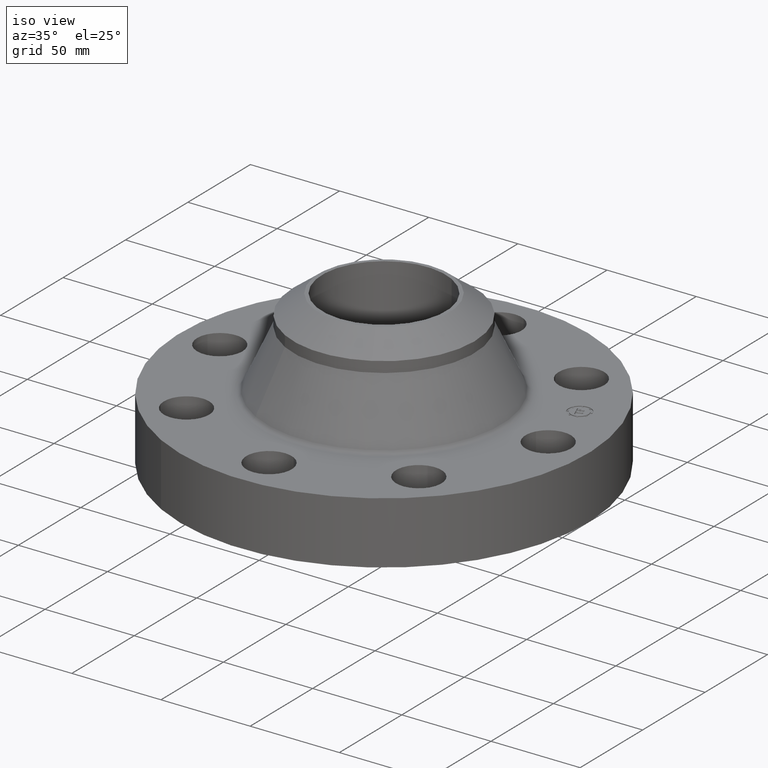
[diagram: clean part render]
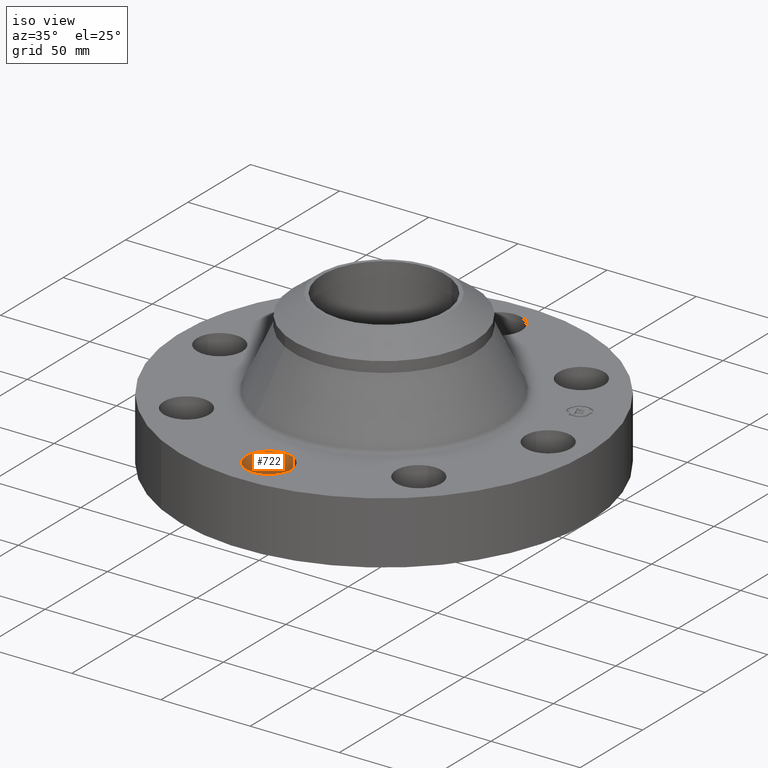
[diagram: same view with one face highlighted and labeled with its STEP entity id]
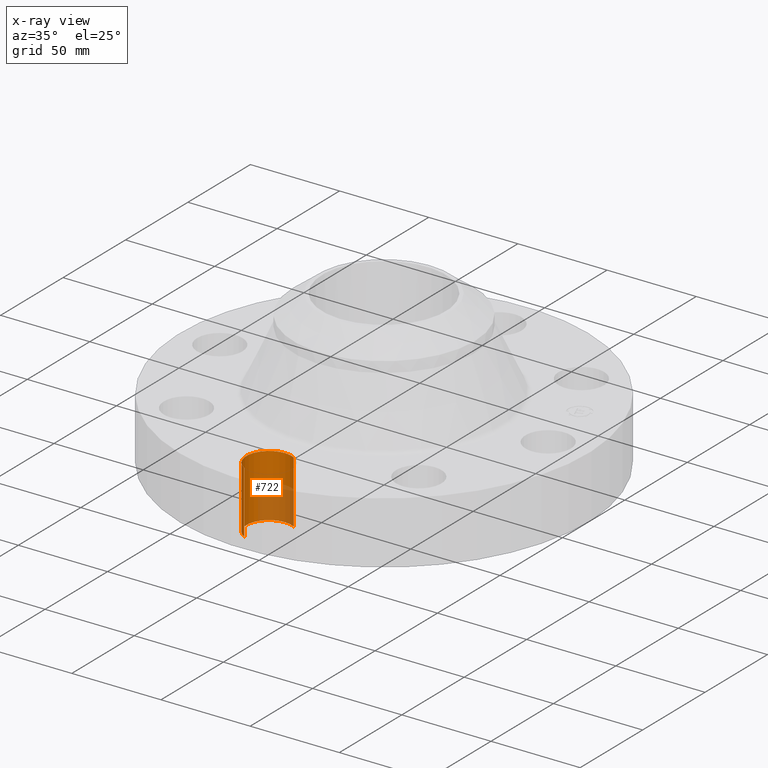
[diagram: x-ray of the same camera — body ghosted, the highlighted face saturated]
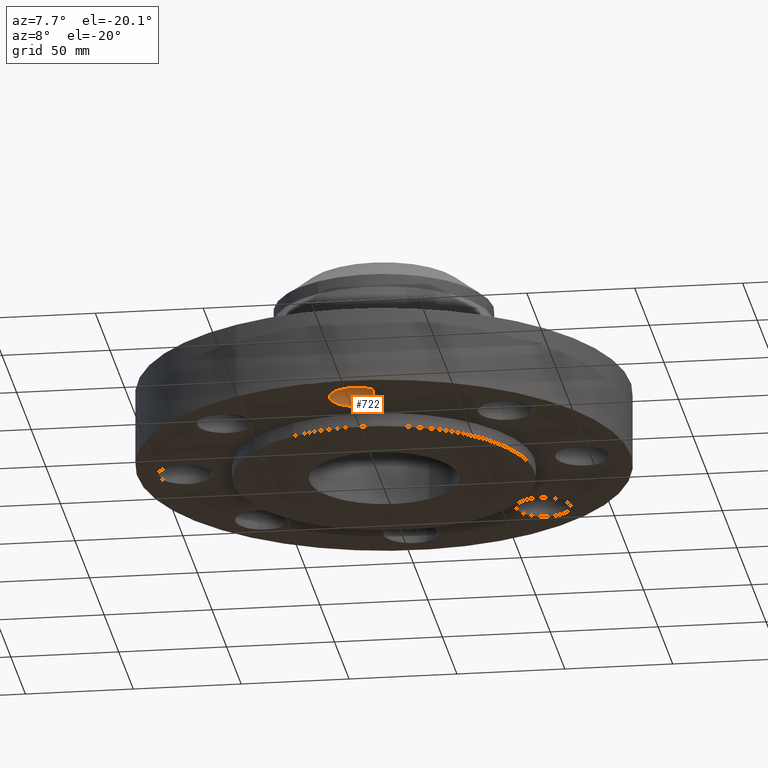
[diagram: same view with one face highlighted and labeled with its STEP entity id]
A machine part, iso view. The second image highlights one B-rep face of the part: STEP entity #722.
The next image is the same camera in x-ray: the body ghosted, the highlighted face saturated — about 36% of this face is hidden behind the body in this view.
A second angle (auxiliary view) of the same face is appended — the face is thin or edge-on in the first view.
In plain terms, the highlighted cylindrical surface (edge-blend (fillet) strip) has radius 12.7 mm, axis along (0, -0, -1).
Its self-contained STEP definition (entity closure, byte-faithful):
#210=AXIS2_PLACEMENT_3D('Circle Axis2P3D',#208,#209,$) ;
#380=AXIS2_PLACEMENT_3D('Circle Axis2P3D',#378,#379,$) ;
#714=AXIS2_PLACEMENT_3D('Cylinder Axis2P3D',#711,#712,#713) ;
#203=CARTESIAN_POINT('Vertex',(0.239712769298,-3.18620871904,0.)) ;
#205=CARTESIAN_POINT('Vertex',(-0.239712769298,-4.06379128093,0.)) ;
#208=CARTESIAN_POINT('Axis2P3D Location',(-1.28116589953E-011,-3.62499999998,0.)) ;
#378=CARTESIAN_POINT('Axis2P3D Location',(-4.36655785895E-011,-3.62499999999,1.38000000001)) ;
#382=CARTESIAN_POINT('Vertex',(-0.239712769302,-4.06379128096,1.37999999999)) ;
#384=CARTESIAN_POINT('Vertex',(0.239712769303,-3.18620871906,1.37999999999)) ;
#687=CARTESIAN_POINT('Line Origine',(0.239712769303,-3.18620871906,0.690000000005)) ;
#692=CARTESIAN_POINT('Line Origine',(-0.239712769303,-4.06379128096,0.690000000005)) ;
#711=CARTESIAN_POINT('Axis2P3D Location',(-3.37515236756E-016,-3.62500000001,1.37606299213)) ;
#209=DIRECTION('Axis2P3D Direction',(0.,0.,-0.0393700787402)) ;
#379=DIRECTION('Axis2P3D Direction',(0.,0.,-0.0393700787402)) ;
#688=DIRECTION('Vector Direction',(0.,0.,-0.0393700787402)) ;
#693=DIRECTION('Vector Direction',(0.,0.,-0.0393700787402)) ;
#712=DIRECTION('Axis2P3D Direction',(0.,-0.,-0.0393700787402)) ;
#713=DIRECTION('Axis2P3D XDirection',(-0.0188750212048,-0.0345504945627,0.)) ;
#689=VECTOR('Line Direction',#688,0.0393700787402) ;
#694=VECTOR('Line Direction',#693,0.0393700787402) ;
#717=ORIENTED_EDGE('',*,*,#696,.F.) ;
#718=ORIENTED_EDGE('',*,*,#212,.T.) ;
#719=ORIENTED_EDGE('',*,*,#691,.T.) ;
#720=ORIENTED_EDGE('',*,*,#386,.F.) ;
#722=ADVANCED_FACE('PartBody',(#721),#715,.F.) ;
#211=CIRCLE('generated circle',#210,0.499999999995) ;
#381=CIRCLE('generated circle',#380,0.499999999995) ;
#715=CYLINDRICAL_SURFACE('generated cylinder',#714,0.500000000002) ;
#212=EDGE_CURVE('',#206,#204,#211,.T.) ;
#386=EDGE_CURVE('',#383,#385,#381,.T.) ;
#691=EDGE_CURVE('',#204,#385,#690,.F.) ;
#696=EDGE_CURVE('',#206,#383,#695,.F.) ;
#716=EDGE_LOOP('',(#717,#718,#719,#720)) ;
#721=FACE_OUTER_BOUND('',#716,.T.) ;
#690=LINE('Line',#687,#689) ;
#695=LINE('Line',#692,#694) ;
#204=VERTEX_POINT('',#203) ;
#206=VERTEX_POINT('',#205) ;
#383=VERTEX_POINT('',#382) ;
#385=VERTEX_POINT('',#384) ;